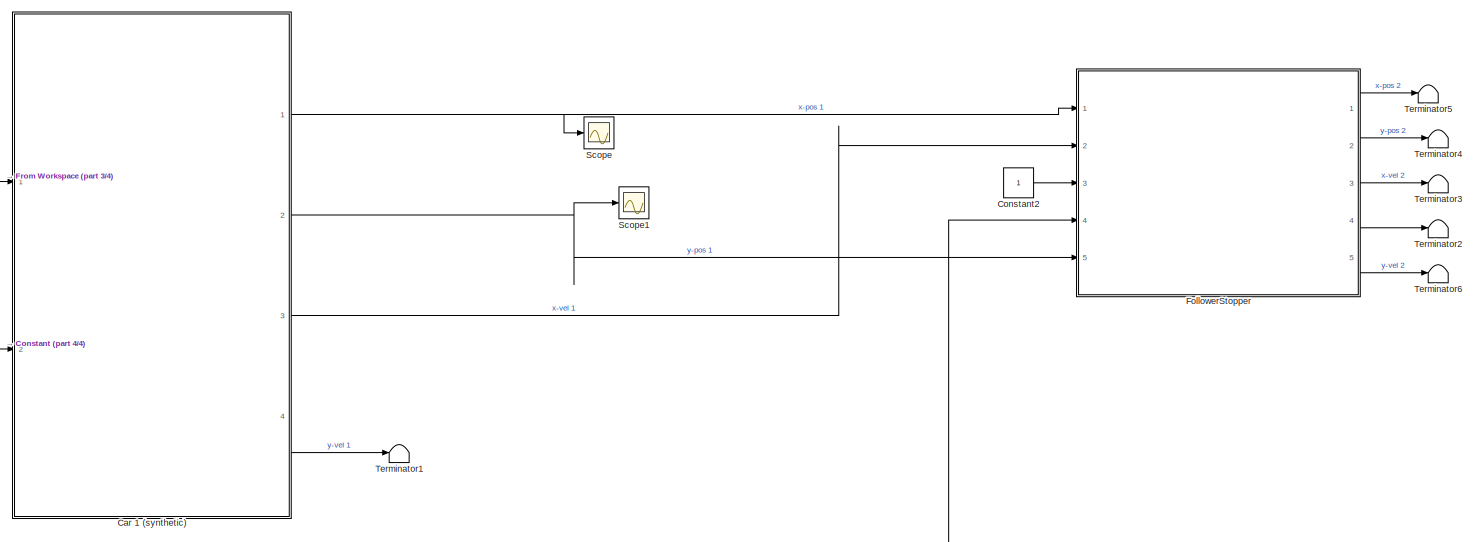
[diagram: root canvas - part 1/4, top center region]
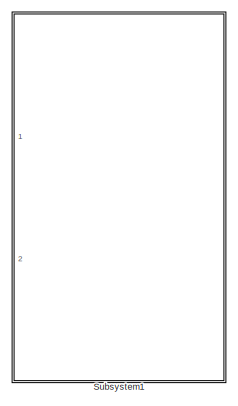
[diagram: root canvas - part 2/4, top right region]
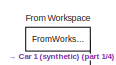
[diagram: root canvas - part 3/4, top left region]
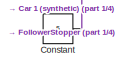
[diagram: root canvas - part 4/4, bottom left region]
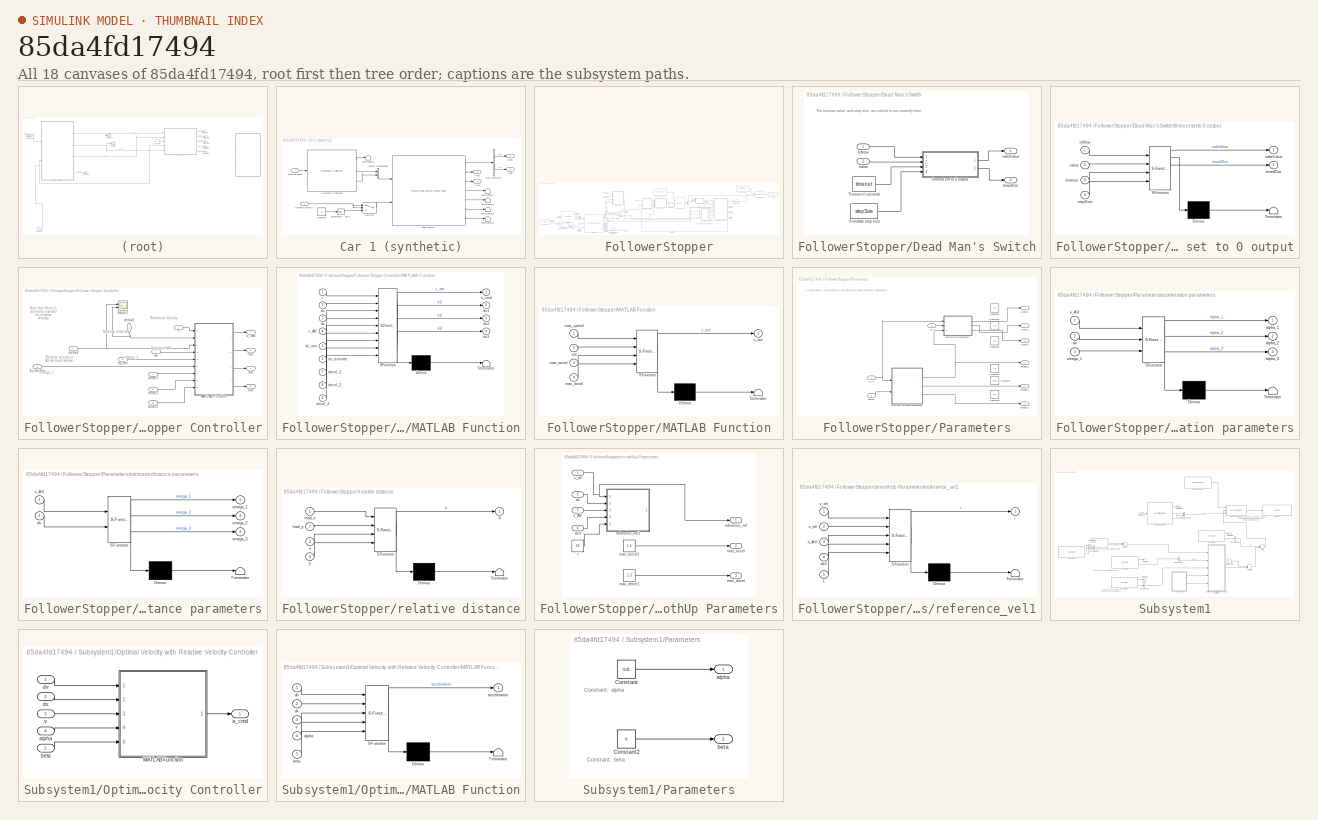
[diagram: thumbnail index - all 18 canvases of the model, root first then tree order]
MODEL slx_85da4fd17494
KIND model
CONFIG AbsTol = auto
CONFIG EnableMultiTasking = off
CONFIG FixedStep = 0.01
CONFIG MaxStep = auto
CONFIG MinStep = auto
CONFIG RelTol = 1e-3
CONFIG SampleTimeConstraint = Unconstrained
CONFIG Solver = FixedStepAuto
CONFIG SolverName = FixedStepAuto
CONFIG StartTime = 0.0
CONFIG StopTime = 90
BLOCK [SubSystem] Car 1 (synthetic)
  Ports = [2, 4]
  RequestExecContextInheritance = off
BLOCK [BusSelector] Car 1 (synthetic)/Bus Selector2
  OutputAsBus = off
  OutputSignals = InertFrm.Geom.Disp.X,InertFrm.Geom.Disp.Y
  Ports = [1, 2]
BLOCK [Constant] Car 1 (synthetic)/Constant2
  Value = 0
BLOCK [Reference] Car 1 (synthetic)/Kinematic Steering  REF=vehdynlibsteering/Kinematic Steering
  Ports = [1, 3]
  SourceBlock = vehdynlibsteering/Kinematic Steering
  SourceProductBaseCode = VE
  SourceProductName = Vehicle Dynamics Blockset
  SourceType = Kinematic Steering
BLOCK [Reference] Car 1 (synthetic)/Lead Vehicle  REF=autolibshared/Vehicle Body 3DOF Single Track
  Ports = [2, 7]
  SourceBlock = autolibshared/Vehicle Body 3DOF Single Track
  SourceProductBaseCode = PW
  SourceProductName = Powertrain Blockset
  SourceType = Vehicle Body 3DOF Lateral
BLOCK [Switch] Car 1 (synthetic)/Switch2
  Criteria = u2 > Threshold
  InputSameDT = off
  SaturateOnIntegerOverflow = off
BLOCK [Terminator] Car 1 (synthetic)/Terminator10
BLOCK [Terminator] Car 1 (synthetic)/Terminator5
BLOCK [Terminator] Car 1 (synthetic)/Terminator7
BLOCK [Terminator] Car 1 (synthetic)/Terminator8
BLOCK [Terminator] Car 1 (synthetic)/Terminator9
BLOCK [Concatenate] Car 1 (synthetic)/Vector Concatenate
  Ports = [2, 1]
BLOCK [Reference] Car 1 (synthetic)/div0protect - poly1  REF=autolibutils/div0protect - poly
  Ports = [1, 1]
  SourceBlock = autolibutils/div0protect - poly
  SourceProductBaseCode = PW
  SourceProductName = Powertrain Blockset
BLOCK [Inport] Car 1 (synthetic)/steering angle
  IconDisplay = Port number
  Port = 2
BLOCK [Inport] Car 1 (synthetic)/synthetic velocity
  IconDisplay = Port number
BLOCK [Outport] Car 1 (synthetic)/x-pos
  IconDisplay = Port number
BLOCK [Outport] Car 1 (synthetic)/x-vel
  IconDisplay = Port number
  Port = 3
BLOCK [Outport] Car 1 (synthetic)/y-pos
  IconDisplay = Port number
  Port = 2
BLOCK [Outport] Car 1 (synthetic)/y-vel
  IconDisplay = Port number
  Port = 4
BLOCK [Constant] Constant
  Value = 5
BLOCK [Constant] Constant2
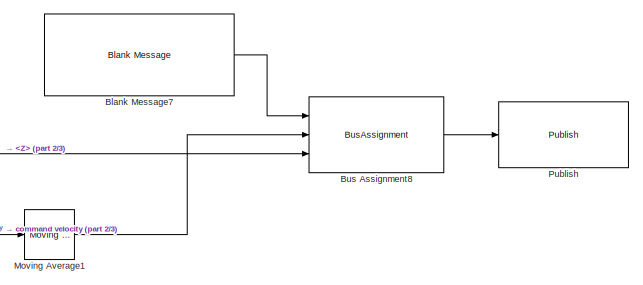
[diagram: FollowerStopper - part 1/3, top right region]
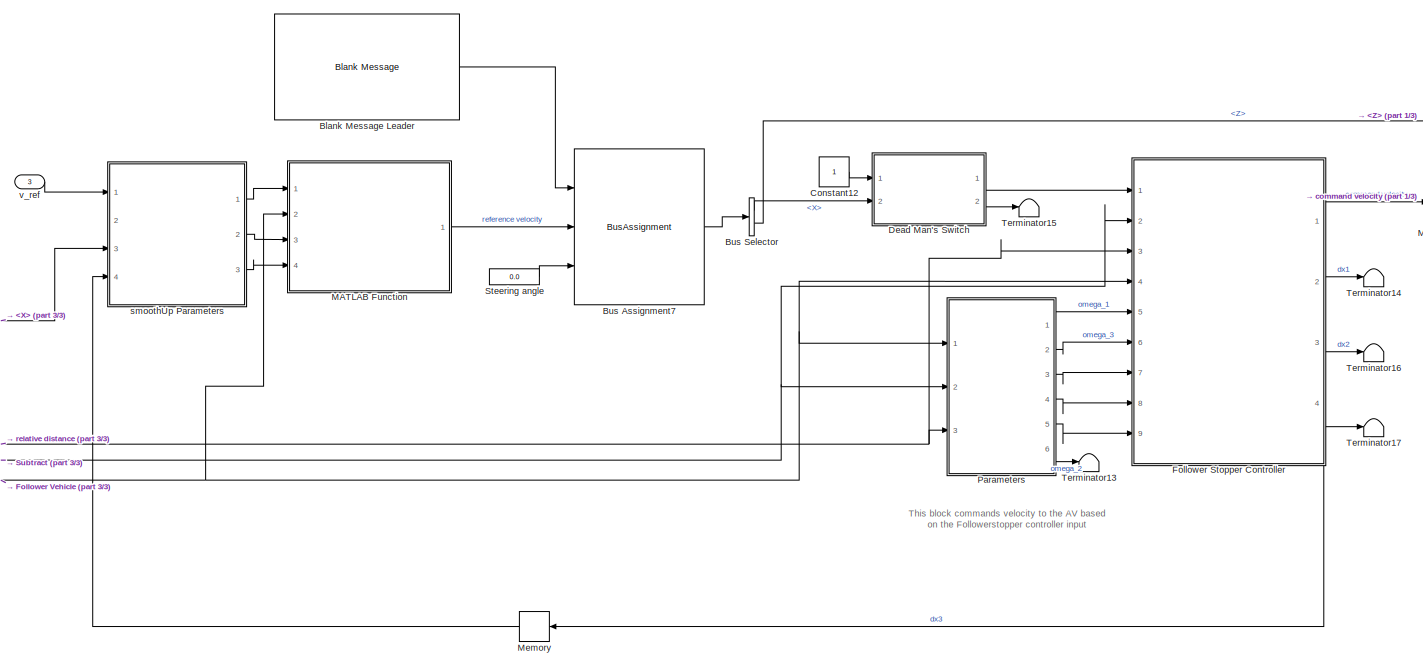
[diagram: FollowerStopper - part 2/3, center side, full height]
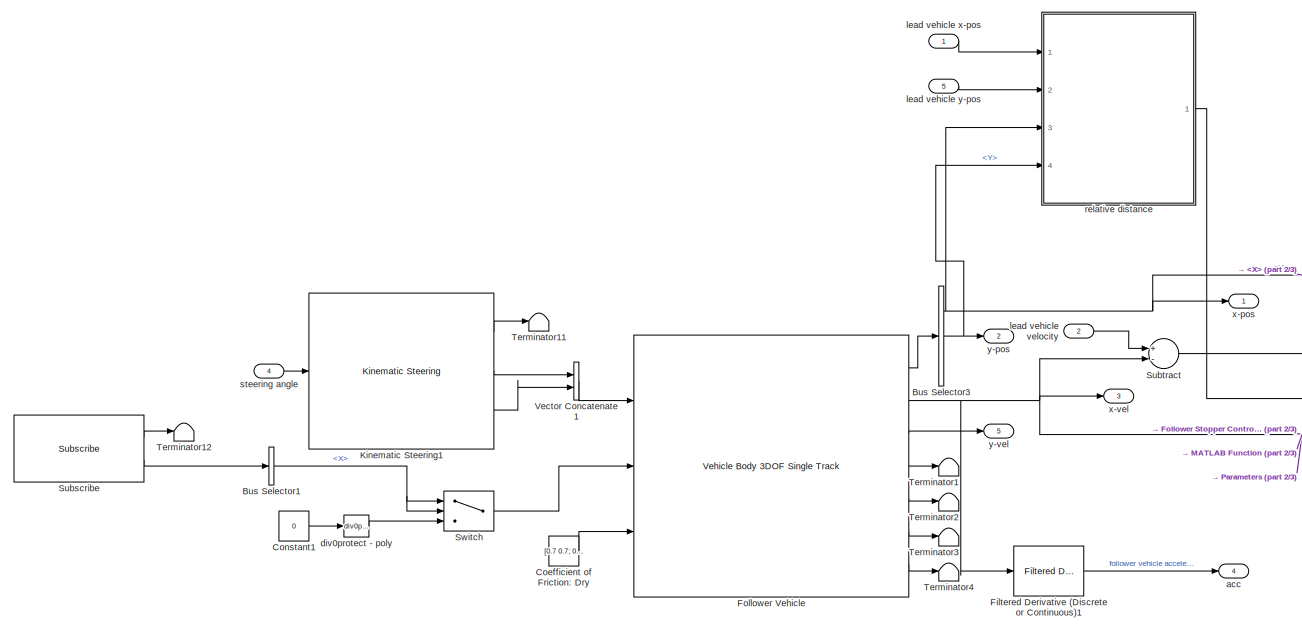
[diagram: FollowerStopper - part 3/3, left side, full height]
BLOCK [SubSystem] FollowerStopper
  Ports = [5, 5]
  RequestExecContextInheritance = off
BLOCK [Reference] FollowerStopper/Blank Message Leader  REF=robotlib/Blank Message
  Ports = [0, 1]
  SourceBlock = robotlib/Blank Message
  SourceProductBaseCode = RO
  SourceProductName = Robotics System Toolbox
  SourceType = ROS Blank Message
BLOCK [Reference] FollowerStopper/Blank Message7  REF=robotlib/Blank Message
  Ports = [0, 1]
  SourceBlock = robotlib/Blank Message
  SourceProductBaseCode = RO
  SourceProductName = Robotics System Toolbox
  SourceType = ROS Blank Message
BLOCK [BusAssignment] FollowerStopper/Bus Assignment7
  AssignedSignals = Linear.X,Angular.Z
  Ports = [3, 1]
BLOCK [BusAssignment] FollowerStopper/Bus Assignment8
  AssignedSignals = Linear.X,Angular.Z
  Ports = [3, 1]
BLOCK [BusSelector] FollowerStopper/Bus Selector
  OutputAsBus = off
  OutputSignals = Linear.X,Angular.Z
  Ports = [1, 2]
BLOCK [BusSelector] FollowerStopper/Bus Selector1
  OutputAsBus = off
  OutputSignals = Linear.X
  Ports = [1, 1]
BLOCK [BusSelector] FollowerStopper/Bus Selector3
  OutputAsBus = off
  OutputSignals = InertFrm.Geom.Disp.X,InertFrm.Geom.Disp.Y,InertFrm.Geom.Disp.Z
  Ports = [1, 3]
BLOCK [Constant] FollowerStopper/Coefficient of Friction: Dry
  Value = [0.7 0.7; 0.7 0.7]
BLOCK [Constant] FollowerStopper/Constant1
  Value = 0
BLOCK [Constant] FollowerStopper/Constant12
BLOCK [SubSystem] FollowerStopper/Dead Man's Switch
  Ports = [2, 2]
  RequestExecContextInheritance = off
  TreatAsAtomicUnit = on
BLOCK [Inport] FollowerStopper/Dead Man's Switch/IsNew
  IconDisplay = Port number
BLOCK [Constant] FollowerStopper/Dead Man's Switch/Simulate step size
  Value = stepSize
BLOCK [Constant] FollowerStopper/Dead Man's Switch/Timeout in seconds
  Value = timeout
BLOCK [Outport] FollowerStopper/Dead Man's Switch/safeValue
  IconDisplay = Port number
  InitialOutput = [0]
BLOCK [Outport] FollowerStopper/Dead Man's Switch/timedOut
  IconDisplay = Port number
  InitialOutput = [0]
  Port = 2
BLOCK [SubSystem] FollowerStopper/Dead Man's Switch/timeout set to 0 output
  ErrorFcn = Stateflow.Translate.translate
  PermitHierarchicalResolution = ExplicitOnly
  Ports = [4, 2]
  RequestExecContextInheritance = off
  SFBlockType = MATLAB Function
  TreatAsAtomicUnit = on
BLOCK [Demux] FollowerStopper/Dead Man's Switch/timeout set to 0 output/ Demux 
  Outputs = 1
  Ports = [1, 1]
BLOCK [S-Function] FollowerStopper/Dead Man's Switch/timeout set to 0 output/ SFunction 
  EnableBusSupport = on
  FunctionName = sf_sfun
  PortCounts = [4 3]
  Ports = [4, 3]
  SFcnIsStateOwnerBlock = off
  SFunctionDeploymentMode = off
  Tag = Stateflow S-Function ringRoad 1
BLOCK [Terminator] FollowerStopper/Dead Man's Switch/timeout set to 0 output/ Terminator 
BLOCK [Inport] FollowerStopper/Dead Man's Switch/timeout set to 0 output/isNew
  IconDisplay = Port number
BLOCK [Outport] FollowerStopper/Dead Man's Switch/timeout set to 0 output/safeValue
  IconDisplay = Port number
BLOCK [Inport] FollowerStopper/Dead Man's Switch/timeout set to 0 output/stepSize
  IconDisplay = Port number
  Port = 4
BLOCK [Outport] FollowerStopper/Dead Man's Switch/timeout set to 0 output/timedOut
  IconDisplay = Port number
  Port = 2
BLOCK [Inport] FollowerStopper/Dead Man's Switch/timeout set to 0 output/timeout
  IconDisplay = Port number
  Port = 3
BLOCK [Inport] FollowerStopper/Dead Man's Switch/timeout set to 0 output/value
  IconDisplay = Port number
  Port = 2
BLOCK [Inport] FollowerStopper/Dead Man's Switch/value
  IconDisplay = Port number
  Port = 2
BLOCK [Reference] FollowerStopper/Filtered Derivative (Discrete or Continuous)1  REF=peGeneralControl/Filtered Derivative
(Discrete or Continuous)
  Ports = [1, 1]
  SourceBlock = peGeneralControl/Filtered Derivative\n(Discrete or Continuous)
  SourceType = Filtered Derivative (Discrete or Continuous)
BLOCK [SubSystem] FollowerStopper/Follower Stopper Controller
  Ports = [9, 4]
  RequestExecContextInheritance = off
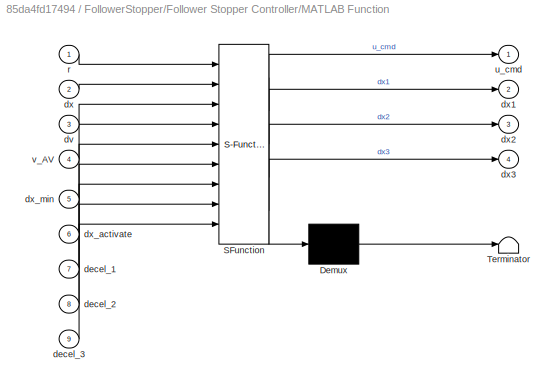
BLOCK [SubSystem] FollowerStopper/Follower Stopper Controller/MATLAB Function
  ErrorFcn = Stateflow.Translate.translate
  PermitHierarchicalResolution = ExplicitOnly
  Ports = [9, 4]
  RequestExecContextInheritance = off
  SFBlockType = MATLAB Function
  TreatAsAtomicUnit = on
BLOCK [Demux] FollowerStopper/Follower Stopper Controller/MATLAB Function/ Demux 
  Outputs = 1
  Ports = [1, 1]
BLOCK [S-Function] FollowerStopper/Follower Stopper Controller/MATLAB Function/ SFunction 
  EnableBusSupport = on
  FunctionName = sf_sfun
  PortCounts = [9 5]
  Ports = [9, 5]
  SFcnIsStateOwnerBlock = off
  SFunctionDeploymentMode = off
  Tag = Stateflow S-Function ringRoad 6
BLOCK [Terminator] FollowerStopper/Follower Stopper Controller/MATLAB Function/ Terminator 
BLOCK [Inport] FollowerStopper/Follower Stopper Controller/MATLAB Function/decel_1
  IconDisplay = Port number
  Port = 7
BLOCK [Inport] FollowerStopper/Follower Stopper Controller/MATLAB Function/decel_2
  IconDisplay = Port number
  Port = 8
BLOCK [Inport] FollowerStopper/Follower Stopper Controller/MATLAB Function/decel_3
  IconDisplay = Port number
  Port = 9
BLOCK [Inport] FollowerStopper/Follower Stopper Controller/MATLAB Function/dv
  IconDisplay = Port number
  Port = 3
BLOCK [Inport] FollowerStopper/Follower Stopper Controller/MATLAB Function/dx
  IconDisplay = Port number
  Port = 2
BLOCK [Outport] FollowerStopper/Follower Stopper Controller/MATLAB Function/dx1
  IconDisplay = Port number
  Port = 2
BLOCK [Outport] FollowerStopper/Follower Stopper Controller/MATLAB Function/dx2
  IconDisplay = Port number
  Port = 3
BLOCK [Outport] FollowerStopper/Follower Stopper Controller/MATLAB Function/dx3
  IconDisplay = Port number
  Port = 4
BLOCK [Inport] FollowerStopper/Follower Stopper Controller/MATLAB Function/dx_activate
  IconDisplay = Port number
  Port = 6
BLOCK [Inport] FollowerStopper/Follower Stopper Controller/MATLAB Function/dx_min
  IconDisplay = Port number
  Port = 5
BLOCK [Inport] FollowerStopper/Follower Stopper Controller/MATLAB Function/r
  IconDisplay = Port number
BLOCK [Outport] FollowerStopper/Follower Stopper Controller/MATLAB Function/u_cmd
  IconDisplay = Port number
BLOCK [Inport] FollowerStopper/Follower Stopper Controller/MATLAB Function/v_AV
  IconDisplay = Port number
  Port = 4
BLOCK [Scope] FollowerStopper/Follower Stopper Controller/Scope1
  Floating = off
  NumInputPorts = 2
  Ports = [2]
  ScopeSpecificationString = Simulink.scopes.TimeScopeBlockCfg('CurrentConfiguration', extmgr.ConfigurationSet(extmgr.Configuration('Core','General UI',true),extmgr.Configuration('Core','Source UI',true),extmgr.Configuration('Sources','WiredSimulink',true,'DataLoggingVariableName','ScopeData1'),extmgr.Configuration('Visuals','Time Domain',true),extmgr.Configuration('Tools','Plot Navigation',true),extmgr.Configuration('Tools',...<+40ch>
BLOCK [Inport] FollowerStopper/Follower Stopper Controller/decel1
  IconDisplay = Port number
  Port = 7
BLOCK [Inport] FollowerStopper/Follower Stopper Controller/decel2
  IconDisplay = Port number
  Port = 8
BLOCK [Inport] FollowerStopper/Follower Stopper Controller/decel3
  IconDisplay = Port number
  Port = 9
BLOCK [Inport] FollowerStopper/Follower Stopper Controller/deltaV
  IconDisplay = Port number
  Port = 2
BLOCK [Inport] FollowerStopper/Follower Stopper Controller/deltaX
  IconDisplay = Port number
  Port = 3
BLOCK [Outport] FollowerStopper/Follower Stopper Controller/dx1
  IconDisplay = Port number
  Port = 2
BLOCK [Outport] FollowerStopper/Follower Stopper Controller/dx2
  IconDisplay = Port number
  Port = 3
BLOCK [Outport] FollowerStopper/Follower Stopper Controller/dx3
  IconDisplay = Port number
  Port = 4
BLOCK [Inport] FollowerStopper/Follower Stopper Controller/dx_activate
  IconDisplay = Port number
  Port = 6
BLOCK [Inport] FollowerStopper/Follower Stopper Controller/dx_min
  IconDisplay = Port number
  Port = 5
BLOCK [Inport] FollowerStopper/Follower Stopper Controller/r
  IconDisplay = Port number
BLOCK [Outport] FollowerStopper/Follower Stopper Controller/u_cmd
  IconDisplay = Port number
BLOCK [Inport] FollowerStopper/Follower Stopper Controller/vel
  IconDisplay = Port number
  Port = 4
BLOCK [Reference] FollowerStopper/Follower Vehicle  REF=autolibshared/Vehicle Body 3DOF Single Track
  Ports = [3, 7]
  SourceBlock = autolibshared/Vehicle Body 3DOF Single Track
  SourceProductBaseCode = PW
  SourceProductName = Powertrain Blockset
  SourceType = Vehicle Body 3DOF Lateral
BLOCK [Reference] FollowerStopper/Kinematic Steering1  REF=vehdynlibsteering/Kinematic Steering
  Ports = [1, 3]
  SourceBlock = vehdynlibsteering/Kinematic Steering
  SourceProductBaseCode = VE
  SourceProductName = Vehicle Dynamics Blockset
  SourceType = Kinematic Steering
BLOCK [SubSystem] FollowerStopper/MATLAB Function
  ErrorFcn = Stateflow.Translate.translate
  PermitHierarchicalResolution = ExplicitOnly
  Ports = [4, 1]
  RequestExecContextInheritance = off
  SFBlockType = MATLAB Function
  TreatAsAtomicUnit = on
BLOCK [Demux] FollowerStopper/MATLAB Function/ Demux 
  Outputs = 1
  Ports = [1, 1]
BLOCK [S-Function] FollowerStopper/MATLAB Function/ SFunction 
  EnableBusSupport = on
  FunctionName = sf_sfun
  PortCounts = [4 2]
  Ports = [4, 2]
  SFcnIsStateOwnerBlock = off
  SFunctionDeploymentMode = off
  Tag = Stateflow S-Function ringRoad 2
BLOCK [Terminator] FollowerStopper/MATLAB Function/ Terminator 
BLOCK [Inport] FollowerStopper/MATLAB Function/max_accel
  IconDisplay = Port number
  Port = 3
BLOCK [Inport] FollowerStopper/MATLAB Function/max_decel
  IconDisplay = Port number
  Port = 4
BLOCK [Inport] FollowerStopper/MATLAB Function/max_speed
  IconDisplay = Port number
BLOCK [Outport] FollowerStopper/MATLAB Function/u_out
  IconDisplay = Port number
BLOCK [Inport] FollowerStopper/MATLAB Function/vel
  IconDisplay = Port number
  Port = 2
BLOCK [Memory] FollowerStopper/Memory
  InheritSampleTime = on
BLOCK [Reference] FollowerStopper/Moving Average1  REF=dspstat3/Moving
Average
  Ports = [1, 1]
  SourceBlock = dspstat3/Moving\nAverage
  SourceProductBaseCode = DS
  SourceProductName = DSP System Toolbox
  SourceType = dsp.simulink.MovingAverage
BLOCK [SubSystem] FollowerStopper/Parameters
  Ports = [3, 6]
  RequestExecContextInheritance = off
BLOCK [Constant] FollowerStopper/Parameters/Constant1
  Commented = on
  Value = 1.5
BLOCK [Constant] FollowerStopper/Parameters/Constant2
  Commented = on
  Value = 1.0
BLOCK [Constant] FollowerStopper/Parameters/Constant3
  Commented = on
  Value = 4.5
BLOCK [Constant] FollowerStopper/Parameters/Constant4
  Commented = on
  Value = 5.25
BLOCK [Constant] FollowerStopper/Parameters/Constant5
  Commented = on
  Value = 6.0
BLOCK [Constant] FollowerStopper/Parameters/Constant6
  Commented = on
  Value = 0.5
BLOCK [SubSystem] FollowerStopper/Parameters/acceleration parameters
  ErrorFcn = Stateflow.Translate.translate
  PermitHierarchicalResolution = ExplicitOnly
  Ports = [3, 3]
  RequestExecContextInheritance = off
  SFBlockType = MATLAB Function
  TreatAsAtomicUnit = on
BLOCK [Demux] FollowerStopper/Parameters/acceleration parameters/ Demux 
  Outputs = 1
  Ports = [1, 1]
BLOCK [S-Function] FollowerStopper/Parameters/acceleration parameters/ SFunction 
  EnableBusSupport = on
  FunctionName = sf_sfun
  PortCounts = [3 4]
  Ports = [3, 4]
  SFcnIsStateOwnerBlock = off
  SFunctionDeploymentMode = off
  Tag = Stateflow S-Function ringRoad 4
BLOCK [Terminator] FollowerStopper/Parameters/acceleration parameters/ Terminator 
BLOCK [Outport] FollowerStopper/Parameters/acceleration parameters/alpha_1
  IconDisplay = Port number
BLOCK [Outport] FollowerStopper/Parameters/acceleration parameters/alpha_2
  IconDisplay = Port number
  Port = 2
BLOCK [Outport] FollowerStopper/Parameters/acceleration parameters/alpha_3
  IconDisplay = Port number
  Port = 3
BLOCK [Inport] FollowerStopper/Parameters/acceleration parameters/dx
  IconDisplay = Port number
  Port = 2
BLOCK [Inport] FollowerStopper/Parameters/acceleration parameters/omega_1
  IconDisplay = Port number
  Port = 3
BLOCK [Inport] FollowerStopper/Parameters/acceleration parameters/v_AV
  IconDisplay = Port number
BLOCK [Outport] FollowerStopper/Parameters/alpha_1
  IconDisplay = Port number
  Port = 3
BLOCK [Outport] FollowerStopper/Parameters/alpha_2
  IconDisplay = Port number
  Port = 4
BLOCK [Outport] FollowerStopper/Parameters/alpha_3
  IconDisplay = Port number
  Port = 5
BLOCK [Inport] FollowerStopper/Parameters/deltaV
  IconDisplay = Port number
  Port = 2
BLOCK [Inport] FollowerStopper/Parameters/dx
  IconDisplay = Port number
  Port = 3
BLOCK [SubSystem] FollowerStopper/Parameters/minimum distance parameters
  ErrorFcn = Stateflow.Translate.translate
  PermitHierarchicalResolution = ExplicitOnly
  Ports = [2, 3]
  RequestExecContextInheritance = off
  SFBlockType = MATLAB Function
  TreatAsAtomicUnit = on
BLOCK [Demux] FollowerStopper/Parameters/minimum distance parameters/ Demux 
  Outputs = 1
  Ports = [1, 1]
BLOCK [S-Function] FollowerStopper/Parameters/minimum distance parameters/ SFunction 
  EnableBusSupport = on
  FunctionName = sf_sfun
  PortCounts = [2 4]
  Ports = [2, 4]
  SFcnIsStateOwnerBlock = off
  SFunctionDeploymentMode = off
  Tag = Stateflow S-Function ringRoad 5
BLOCK [Terminator] FollowerStopper/Parameters/minimum distance parameters/ Terminator 
BLOCK [Inport] FollowerStopper/Parameters/minimum distance parameters/dv
  IconDisplay = Port number
  Port = 2
BLOCK [Outport] FollowerStopper/Parameters/minimum distance parameters/omega_1
  IconDisplay = Port number
BLOCK [Outport] FollowerStopper/Parameters/minimum distance parameters/omega_2
  IconDisplay = Port number
  Port = 2
BLOCK [Outport] FollowerStopper/Parameters/minimum distance parameters/omega_3
  IconDisplay = Port number
  Port = 3
BLOCK [Inport] FollowerStopper/Parameters/minimum distance parameters/v_AV
  IconDisplay = Port number
BLOCK [Outport] FollowerStopper/Parameters/omega_1
  IconDisplay = Port number
BLOCK [Outport] FollowerStopper/Parameters/omega_2
  IconDisplay = Port number
  Port = 6
BLOCK [Outport] FollowerStopper/Parameters/omega_3
  IconDisplay = Port number
  Port = 2
BLOCK [Inport] FollowerStopper/Parameters/v_AV
  IconDisplay = Port number
BLOCK [Reference] FollowerStopper/Publish  REF=robotlib/Publish
  Ports = [1]
  SourceBlock = robotlib/Publish
  SourceProductBaseCode = RO
  SourceProductName = Robotics System Toolbox
  SourceType = ROS Publish
BLOCK [Constant] FollowerStopper/Steering angle
  Value = 0.0
BLOCK [Reference] FollowerStopper/Subscribe  REF=robotlib/Subscribe
  Ports = [0, 2]
  SourceBlock = robotlib/Subscribe
  SourceProductBaseCode = RO
  SourceProductName = Robotics System Toolbox
  SourceType = ROS Subscribe
BLOCK [Sum] FollowerStopper/Subtract
  InputSameDT = off
  Inputs = +-
  OutDataTypeStr = Inherit: Inherit via internal rule
  Ports = [2, 1]
  SaturateOnIntegerOverflow = off
BLOCK [Switch] FollowerStopper/Switch
  Criteria = u2 > Threshold
  InputSameDT = off
  SaturateOnIntegerOverflow = off
BLOCK [Terminator] FollowerStopper/Terminator1
BLOCK [Terminator] FollowerStopper/Terminator11
BLOCK [Terminator] FollowerStopper/Terminator12
BLOCK [Terminator] FollowerStopper/Terminator13
BLOCK [Terminator] FollowerStopper/Terminator14
BLOCK [Terminator] FollowerStopper/Terminator15
BLOCK [Terminator] FollowerStopper/Terminator16
BLOCK [Terminator] FollowerStopper/Terminator17
BLOCK [Terminator] FollowerStopper/Terminator2
BLOCK [Terminator] FollowerStopper/Terminator3
BLOCK [Terminator] FollowerStopper/Terminator4
BLOCK [Concatenate] FollowerStopper/Vector Concatenate1
  Ports = [2, 1]
BLOCK [Outport] FollowerStopper/acc
  IconDisplay = Port number
  Port = 4
BLOCK [Reference] FollowerStopper/div0protect - poly  REF=autolibutils/div0protect - poly
  Ports = [1, 1]
  SourceBlock = autolibutils/div0protect - poly
  SourceProductBaseCode = PW
  SourceProductName = Powertrain Blockset
BLOCK [Inport] FollowerStopper/lead vehicle velocity
  IconDisplay = Port number
  Port = 2
BLOCK [Inport] FollowerStopper/lead vehicle x-pos
  IconDisplay = Port number
BLOCK [Inport] FollowerStopper/lead vehicle y-pos
  IconDisplay = Port number
  Port = 5
BLOCK [SubSystem] FollowerStopper/relative distance
  ErrorFcn = Stateflow.Translate.translate
  PermitHierarchicalResolution = ExplicitOnly
  Ports = [4, 1]
  RequestExecContextInheritance = off
  SFBlockType = MATLAB Function
  TreatAsAtomicUnit = on
BLOCK [Demux] FollowerStopper/relative distance/ Demux 
  Outputs = 1
  Ports = [1, 1]
BLOCK [S-Function] FollowerStopper/relative distance/ SFunction 
  EnableBusSupport = on
  FunctionName = sf_sfun
  PortCounts = [4 2]
  Ports = [4, 2]
  SFcnIsStateOwnerBlock = off
  SFunctionDeploymentMode = off
  Tag = Stateflow S-Function ringRoad 8
BLOCK [Terminator] FollowerStopper/relative distance/ Terminator 
BLOCK [Outport] FollowerStopper/relative distance/d
  IconDisplay = Port number
BLOCK [Inport] FollowerStopper/relative distance/lead_x
  IconDisplay = Port number
BLOCK [Inport] FollowerStopper/relative distance/lead_y
  IconDisplay = Port number
  Port = 2
BLOCK [Inport] FollowerStopper/relative distance/x
  IconDisplay = Port number
  Port = 3
BLOCK [Inport] FollowerStopper/relative distance/y
  IconDisplay = Port number
  Port = 4
BLOCK [SubSystem] FollowerStopper/smoothUp Parameters
  Ports = [4, 3]
  RequestExecContextInheritance = off
BLOCK [Inport] FollowerStopper/smoothUp Parameters/dx
  IconDisplay = Port number
  Port = 2
BLOCK [Inport] FollowerStopper/smoothUp Parameters/dx3
  IconDisplay = Port number
  Port = 4
BLOCK [Outport] FollowerStopper/smoothUp Parameters/max_accel
  IconDisplay = Port number
  Port = 2
BLOCK [Constant] FollowerStopper/smoothUp Parameters/max_accel1
  Value = 1.5
BLOCK [Outport] FollowerStopper/smoothUp Parameters/max_decel
  IconDisplay = Port number
  Port = 3
BLOCK [Constant] FollowerStopper/smoothUp Parameters/max_decel1
  Value = -1.5
BLOCK [Outport] FollowerStopper/smoothUp Parameters/reference_vel
  IconDisplay = Port number
BLOCK [SubSystem] FollowerStopper/smoothUp Parameters/reference_vel1
  Commented = on
  ErrorFcn = Stateflow.Translate.translate
  PermitHierarchicalResolution = ExplicitOnly
  Ports = [5, 1]
  RequestExecContextInheritance = off
  SFBlockType = MATLAB Function
  TreatAsAtomicUnit = on
BLOCK [Demux] FollowerStopper/smoothUp Parameters/reference_vel1/ Demux 
  Outputs = 1
  Ports = [1, 1]
BLOCK [S-Function] FollowerStopper/smoothUp Parameters/reference_vel1/ SFunction 
  EnableBusSupport = on
  FunctionName = sf_sfun
  PortCounts = [5 2]
  Ports = [5, 2]
  SFcnIsStateOwnerBlock = off
  SFunctionDeploymentMode = off
  Tag = Stateflow S-Function ringRoad 7
BLOCK [Terminator] FollowerStopper/smoothUp Parameters/reference_vel1/ Terminator 
BLOCK [Inport] FollowerStopper/smoothUp Parameters/reference_vel1/dx3
  IconDisplay = Port number
  Port = 4
BLOCK [Outport] FollowerStopper/smoothUp Parameters/reference_vel1/r
  IconDisplay = Port number
BLOCK [Inport] FollowerStopper/smoothUp Parameters/reference_vel1/t
  IconDisplay = Port number
  Port = 5
BLOCK [Inport] FollowerStopper/smoothUp Parameters/reference_vel1/v_ref
  IconDisplay = Port number
BLOCK [Inport] FollowerStopper/smoothUp Parameters/reference_vel1/x_AV
  IconDisplay = Port number
  Port = 3
BLOCK [Inport] FollowerStopper/smoothUp Parameters/reference_vel1/x_ref
  IconDisplay = Port number
  Port = 2
BLOCK [Constant] FollowerStopper/smoothUp Parameters/t
  Value = 10
BLOCK [Inport] FollowerStopper/smoothUp Parameters/v_ref
  IconDisplay = Port number
BLOCK [Inport] FollowerStopper/smoothUp Parameters/x_AV
  IconDisplay = Port number
  Port = 3
BLOCK [Inport] FollowerStopper/steering angle
  IconDisplay = Port number
  Port = 4
BLOCK [Inport] FollowerStopper/v_ref
  IconDisplay = Port number
  Port = 3
BLOCK [Outport] FollowerStopper/x-pos
  IconDisplay = Port number
BLOCK [Outport] FollowerStopper/x-vel
  IconDisplay = Port number
  Port = 3
BLOCK [Outport] FollowerStopper/y-pos
  IconDisplay = Port number
  Port = 2
BLOCK [Outport] FollowerStopper/y-vel
  IconDisplay = Port number
  Port = 5
BLOCK [FromWorkspace] From Workspace
  VariableName = vel_car_1
  ZeroCross = on
BLOCK [Scope] Scope
  Floating = off
  NumInputPorts = 1
  Ports = [1]
  ScopeSpecificationString = Simulink.scopes.TimeScopeBlockCfg('CurrentConfiguration', extmgr.ConfigurationSet(extmgr.Configuration('Core','General UI',true),extmgr.Configuration('Core','Source UI',true),extmgr.Configuration('Sources','WiredSimulink',true,'DataLoggingVariableName','xpos','DataLogging',true),extmgr.Configuration('Visuals','Time Domain',true,'SerializedDisplays',{struct('MinYLimReal','-33.20912','MaxYLimReal','...<+1414ch>
BLOCK [Scope] Scope1
  Floating = off
  NumInputPorts = 1
  Ports = [1]
  ScopeSpecificationString = Simulink.scopes.TimeScopeBlockCfg('CurrentConfiguration', extmgr.ConfigurationSet(extmgr.Configuration('Core','General UI',true),extmgr.Configuration('Core','Source UI',true),extmgr.Configuration('Sources','WiredSimulink',true,'DataLoggingVariableName','ypos','DataLogging',true),extmgr.Configuration('Visuals','Time Domain',true,'SerializedDisplays',{struct('MinYLimReal','-18.7865','MaxYLimReal','1...<+1416ch>
BLOCK [SubSystem] Subsystem1
  Commented = on
  Ports = [2]
  RequestExecContextInheritance = off
BLOCK [Sum] Subsystem1/Add
  InputSameDT = off
  OutDataTypeStr = Inherit: Inherit via internal rule
  Ports = [2, 1]
  SaturateOnIntegerOverflow = off
BLOCK [Reference] Subsystem1/Blank Message  REF=robotlib/Blank Message
  Ports = [0, 1]
  SourceBlock = robotlib/Blank Message
  SourceProductBaseCode = RO
  SourceProductName = Robotics System Toolbox
  SourceType = ROS Blank Message
BLOCK [BusAssignment] Subsystem1/Bus Assignment
  AssignedSignals = Linear.X,Angular.Z
  Ports = [3, 1]
BLOCK [BusSelector] Subsystem1/Bus Selector1
  OutputAsBus = off
  OutputSignals = Data
  Ports = [1, 1]
BLOCK [BusSelector] Subsystem1/Bus Selector2
  OutputAsBus = off
  OutputSignals = Linear.X
  Ports = [1, 1]
BLOCK [BusSelector] Subsystem1/Bus Selector3
  OutputAsBus = off
  OutputSignals = Linear.X
  Ports = [1, 1]
BLOCK [BusSelector] Subsystem1/Bus Selector5
  OutputAsBus = off
  OutputSignals = Linear.X
  Ports = [1, 1]
BLOCK [Reference] Subsystem1/Kinematic Steering1  REF=vehdynlibsteering/Kinematic Steering
  Ports = [1, 3]
  SourceBlock = vehdynlibsteering/Kinematic Steering
  SourceProductBaseCode = VE
  SourceProductName = Vehicle Dynamics Blockset
  SourceType = Kinematic Steering
BLOCK [Product] Subsystem1/Multiply
  InputSameDT = off
  OutDataTypeStr = Inherit: Inherit via internal rule
  Ports = [2, 1]
  RndMeth = Floor
  SaturateOnIntegerOverflow = off
BLOCK [SubSystem] Subsystem1/Optimal Velocity with Relative Velocity Controller
  Ports = [5, 1]
  RequestExecContextInheritance = off
BLOCK [SubSystem] Subsystem1/Optimal Velocity with Relative Velocity Controller/MATLAB Function
  ErrorFcn = Stateflow.Translate.translate
  PermitHierarchicalResolution = ExplicitOnly
  Ports = [5, 1]
  RequestExecContextInheritance = off
  SFBlockType = MATLAB Function
  TreatAsAtomicUnit = on
BLOCK [Demux] Subsystem1/Optimal Velocity with Relative Velocity Controller/MATLAB Function/ Demux 
  Outputs = 1
  Ports = [1, 1]
BLOCK [S-Function] Subsystem1/Optimal Velocity with Relative Velocity Controller/MATLAB Function/ SFunction 
  EnableBusSupport = on
  FunctionName = sf_sfun
  PortCounts = [5 2]
  Ports = [5, 2]
  SFcnIsStateOwnerBlock = off
  SFunctionDeploymentMode = off
  Tag = Stateflow S-Function ringRoad 3
BLOCK [Terminator] Subsystem1/Optimal Velocity with Relative Velocity Controller/MATLAB Function/ Terminator 
BLOCK [Outport] Subsystem1/Optimal Velocity with Relative Velocity Controller/MATLAB Function/acceleration
  IconDisplay = Port number
BLOCK [Inport] Subsystem1/Optimal Velocity with Relative Velocity Controller/MATLAB Function/alpha
  IconDisplay = Port number
  Port = 4
BLOCK [Inport] Subsystem1/Optimal Velocity with Relative Velocity Controller/MATLAB Function/beta
  IconDisplay = Port number
  Port = 5
BLOCK [Inport] Subsystem1/Optimal Velocity with Relative Velocity Controller/MATLAB Function/dv
  IconDisplay = Port number
BLOCK [Inport] Subsystem1/Optimal Velocity with Relative Velocity Controller/MATLAB Function/dx
  IconDisplay = Port number
  Port = 2
BLOCK [Inport] Subsystem1/Optimal Velocity with Relative Velocity Controller/MATLAB Function/v
  IconDisplay = Port number
  Port = 3
BLOCK [Outport] Subsystem1/Optimal Velocity with Relative Velocity Controller/a_cmd
  IconDisplay = Port number
BLOCK [Inport] Subsystem1/Optimal Velocity with Relative Velocity Controller/alpha
  IconDisplay = Port number
  Port = 4
BLOCK [Inport] Subsystem1/Optimal Velocity with Relative Velocity Controller/beta
  IconDisplay = Port number
  Port = 5
BLOCK [Inport] Subsystem1/Optimal Velocity with Relative Velocity Controller/dv
  IconDisplay = Port number
BLOCK [Inport] Subsystem1/Optimal Velocity with Relative Velocity Controller/dx
  IconDisplay = Port number
  Port = 2
BLOCK [Inport] Subsystem1/Optimal Velocity with Relative Velocity Controller/v
  IconDisplay = Port number
  Port = 3
BLOCK [SubSystem] Subsystem1/Parameters
  Ports = [0, 2]
  RequestExecContextInheritance = off
BLOCK [Constant] Subsystem1/Parameters/Constant
  Value = 0.41
BLOCK [Constant] Subsystem1/Parameters/Constant2
  Value = 0
BLOCK [Outport] Subsystem1/Parameters/alpha
  IconDisplay = Port number
BLOCK [Outport] Subsystem1/Parameters/beta
  IconDisplay = Port number
  Port = 2
BLOCK [Reference] Subsystem1/Publish  REF=robotlib/Publish
  Ports = [1]
  SourceBlock = robotlib/Publish
  SourceProductBaseCode = RO
  SourceProductName = Robotics System Toolbox
  SourceType = ROS Publish
BLOCK [Constant] Subsystem1/Sampling Time
  Value = 0.2
BLOCK [Reference] Subsystem1/Subscribe  REF=robotlib/Subscribe
  Ports = [0, 2]
  SourceBlock = robotlib/Subscribe
  SourceProductBaseCode = RO
  SourceProductName = Robotics System Toolbox
  SourceType = ROS Subscribe
BLOCK [Reference] Subsystem1/Subscribe3  REF=robotlib/Subscribe
  Ports = [0, 2]
  SourceBlock = robotlib/Subscribe
  SourceProductBaseCode = RO
  SourceProductName = Robotics System Toolbox
  SourceType = ROS Subscribe
BLOCK [Reference] Subsystem1/Subscribe4  REF=robotlib/Subscribe
  Ports = [0, 2]
  SourceBlock = robotlib/Subscribe
  SourceProductBaseCode = RO
  SourceProductName = Robotics System Toolbox
  SourceType = ROS Subscribe
BLOCK [Reference] Subsystem1/Subscribe6  REF=robotlib/Subscribe
  Ports = [0, 2]
  SourceBlock = robotlib/Subscribe
  SourceProductBaseCode = RO
  SourceProductName = Robotics System Toolbox
  SourceType = ROS Subscribe
BLOCK [Sum] Subsystem1/Subtract
  InputSameDT = off
  Inputs = +-
  OutDataTypeStr = Inherit: Inherit via internal rule
  Ports = [2, 1]
  SaturateOnIntegerOverflow = off
BLOCK [Terminator] Subsystem1/Terminator
BLOCK [Terminator] Subsystem1/Terminator1
BLOCK [Terminator] Subsystem1/Terminator11
BLOCK [Terminator] Subsystem1/Terminator4
BLOCK [Terminator] Subsystem1/Terminator5
BLOCK [Concatenate] Subsystem1/Vector Concatenate1
  Ports = [2, 1]
BLOCK [Inport] Subsystem1/lead vehicle velocity
  IconDisplay = Port number
BLOCK [Inport] Subsystem1/steering ang
  IconDisplay = Port number
  Port = 2
BLOCK [Terminator] Terminator1
BLOCK [Terminator] Terminator2
BLOCK [Terminator] Terminator3
BLOCK [Terminator] Terminator4
BLOCK [Terminator] Terminator5
BLOCK [Terminator] Terminator6
ANNOTATION FollowerStopper: This block commands velocity to the AV based on the Followerstopper controller input
ANNOTATION FollowerStopper/Dead Man's Switch: The timeout value, and step size, are critical to set correctly here.
ANNOTATION FollowerStopper/Follower Stopper Controller: Reference Velocity
ANNOTATION FollowerStopper/Follower Stopper Controller: Relative distance
ANNOTATION FollowerStopper/Follower Stopper Controller: Relative velocity of AV wrt lead vehicle
ANNOTATION FollowerStopper/Follower Stopper Controller: Velocity of AV
ANNOTATION FollowerStopper/Follower Stopper Controller: \omega_1
ANNOTATION FollowerStopper/Follower Stopper Controller: \omega_3
ANNOTATION FollowerStopper/Follower Stopper Controller: Note that Benni's controller uses dU for relative velocity
ANNOTATION FollowerStopper/Parameters: Always check if the constants or the function are used inside both "parameters" blocks
ANNOTATION Subsystem1: This block commands velocity to the AV based on the Optimal Velocity with Relative Velocity human car-following model
ANNOTATION Subsystem1: This block subscribes to relative distance
ANNOTATION Subsystem1: This block subscribes to relative velocity
ANNOTATION Subsystem1: This block subscribes to instantaneous velocity of the AV
ANNOTATION Subsystem1/Parameters: Constant: alpha
ANNOTATION Subsystem1/Parameters: Constant: beta
LINE Car 1 (synthetic)/Bus Selector2:1 -> Car 1 (synthetic)/x-pos:1
LINE Car 1 (synthetic)/Bus Selector2:2 -> Car 1 (synthetic)/y-pos:1
LINE Car 1 (synthetic)/Constant2:1 -> Car 1 (synthetic)/div0protect - poly1:1
LINE Car 1 (synthetic)/Kinematic Steering:1 -> Car 1 (synthetic)/Terminator5:1
LINE Car 1 (synthetic)/Kinematic Steering:2 -> Car 1 (synthetic)/Vector Concatenate:1
LINE Car 1 (synthetic)/Kinematic Steering:3 -> Car 1 (synthetic)/Vector Concatenate:2
LINE Car 1 (synthetic)/Lead Vehicle:1 -> Car 1 (synthetic)/Bus Selector2:1
LINE Car 1 (synthetic)/Lead Vehicle:2 -> Car 1 (synthetic)/x-vel:1
LINE Car 1 (synthetic)/Lead Vehicle:3 -> Car 1 (synthetic)/y-vel:1
LINE Car 1 (synthetic)/Lead Vehicle:4 -> Car 1 (synthetic)/Terminator7:1
LINE Car 1 (synthetic)/Lead Vehicle:5 -> Car 1 (synthetic)/Terminator8:1
LINE Car 1 (synthetic)/Lead Vehicle:6 -> Car 1 (synthetic)/Terminator9:1
LINE Car 1 (synthetic)/Lead Vehicle:7 -> Car 1 (synthetic)/Terminator10:1
LINE Car 1 (synthetic)/Switch2:1 -> Car 1 (synthetic)/Lead Vehicle:2
LINE Car 1 (synthetic)/Vector Concatenate:1 -> Car 1 (synthetic)/Lead Vehicle:1
LINE Car 1 (synthetic)/div0protect - poly1:1 -> Car 1 (synthetic)/Switch2:3
LINE Car 1 (synthetic)/steering angle:1 -> Car 1 (synthetic)/Kinematic Steering:1
NET Car 1 (synthetic)/synthetic velocity:1 -> Car 1 (synthetic)/Switch2:1, Car 1 (synthetic)/Switch2:2
NET Car 1 (synthetic):1 -> FollowerStopper:1, Scope:1
NET Car 1 (synthetic):2 -> FollowerStopper:5, Scope1:1
LINE Car 1 (synthetic):3 -> FollowerStopper:2
LINE Car 1 (synthetic):4 -> Terminator1:1
LINE Constant2:1 -> FollowerStopper:3
NET Constant:1 -> Car 1 (synthetic):2, FollowerStopper:4
LINE FollowerStopper/Blank Message Leader:1 -> FollowerStopper/Bus Assignment7:1
LINE FollowerStopper/Blank Message7:1 -> FollowerStopper/Bus Assignment8:1
LINE FollowerStopper/Bus Assignment7:1 -> FollowerStopper/Bus Selector:1
LINE FollowerStopper/Bus Assignment8:1 -> FollowerStopper/Publish:1
NET FollowerStopper/Bus Selector1:1 -> FollowerStopper/Switch:1, FollowerStopper/Switch:2
NET FollowerStopper/Bus Selector3:1 -> FollowerStopper/relative distance:3, FollowerStopper/smoothUp Parameters:3, FollowerStopper/x-pos:1
NET FollowerStopper/Bus Selector3:2 -> FollowerStopper/relative distance:4, FollowerStopper/y-pos:1
LINE FollowerStopper/Bus Selector:1 -> FollowerStopper/Dead Man's Switch:2
LINE FollowerStopper/Bus Selector:2 -> FollowerStopper/Bus Assignment8:3
LINE FollowerStopper/Coefficient of Friction: Dry:1 -> FollowerStopper/Follower Vehicle:3
LINE FollowerStopper/Constant12:1 -> FollowerStopper/Dead Man's Switch:1
LINE FollowerStopper/Constant1:1 -> FollowerStopper/div0protect - poly:1
LINE FollowerStopper/Dead Man's Switch/IsNew:1 -> FollowerStopper/Dead Man's Switch/timeout set to 0 output:1
LINE FollowerStopper/Dead Man's Switch/Simulate step size:1 -> FollowerStopper/Dead Man's Switch/timeout set to 0 output:4
LINE FollowerStopper/Dead Man's Switch/Timeout in seconds:1 -> FollowerStopper/Dead Man's Switch/timeout set to 0 output:3
LINE FollowerStopper/Dead Man's Switch/timeout set to 0 output:1 -> FollowerStopper/Dead Man's Switch/safeValue:1
LINE FollowerStopper/Dead Man's Switch/timeout set to 0 output:2 -> FollowerStopper/Dead Man's Switch/timedOut:1
LINE FollowerStopper/Dead Man's Switch/value:1 -> FollowerStopper/Dead Man's Switch/timeout set to 0 output:2
LINE FollowerStopper/Dead Man's Switch:1 -> FollowerStopper/Follower Stopper Controller:1
LINE FollowerStopper/Dead Man's Switch:2 -> FollowerStopper/Terminator15:1
LINE FollowerStopper/Filtered Derivative (Discrete or Continuous)1:1 -> FollowerStopper/acc:1
LINE FollowerStopper/Follower Stopper Controller/MATLAB Function:1 -> FollowerStopper/Follower Stopper Controller/u_cmd:1
LINE FollowerStopper/Follower Stopper Controller/MATLAB Function:2 -> FollowerStopper/Follower Stopper Controller/dx1:1
LINE FollowerStopper/Follower Stopper Controller/MATLAB Function:3 -> FollowerStopper/Follower Stopper Controller/dx2:1
LINE FollowerStopper/Follower Stopper Controller/MATLAB Function:4 -> FollowerStopper/Follower Stopper Controller/dx3:1
LINE FollowerStopper/Follower Stopper Controller/decel1:1 -> FollowerStopper/Follower Stopper Controller/MATLAB Function:7
LINE FollowerStopper/Follower Stopper Controller/decel2:1 -> FollowerStopper/Follower Stopper Controller/MATLAB Function:8
LINE FollowerStopper/Follower Stopper Controller/decel3:1 -> FollowerStopper/Follower Stopper Controller/MATLAB Function:9
NET FollowerStopper/Follower Stopper Controller/deltaV:1 -> FollowerStopper/Follower Stopper Controller/MATLAB Function:3, FollowerStopper/Follower Stopper Controller/Scope1:1
NET FollowerStopper/Follower Stopper Controller/deltaX:1 -> FollowerStopper/Follower Stopper Controller/MATLAB Function:2, FollowerStopper/Follower Stopper Controller/Scope1:2
LINE FollowerStopper/Follower Stopper Controller/dx_activate:1 -> FollowerStopper/Follower Stopper Controller/MATLAB Function:6
LINE FollowerStopper/Follower Stopper Controller/dx_min:1 -> FollowerStopper/Follower Stopper Controller/MATLAB Function:5
LINE FollowerStopper/Follower Stopper Controller/r:1 -> FollowerStopper/Follower Stopper Controller/MATLAB Function:1
LINE FollowerStopper/Follower Stopper Controller/vel:1 -> FollowerStopper/Follower Stopper Controller/MATLAB Function:4
LINE FollowerStopper/Follower Stopper Controller:1 -> FollowerStopper/Moving Average1:1
LINE FollowerStopper/Follower Stopper Controller:2 -> FollowerStopper/Terminator14:1
LINE FollowerStopper/Follower Stopper Controller:3 -> FollowerStopper/Terminator16:1
NET FollowerStopper/Follower Stopper Controller:4 -> FollowerStopper/Memory:1, FollowerStopper/Terminator17:1
LINE FollowerStopper/Follower Vehicle:1 -> FollowerStopper/Bus Selector3:1
NET FollowerStopper/Follower Vehicle:2 -> FollowerStopper/Filtered Derivative (Discrete or Continuous)1:1, FollowerStopper/Follower Stopper Controller:4, FollowerStopper/MATLAB Function:2, FollowerStopper/Parameters:1, FollowerStopper/Subtract:2, FollowerStopper/x-vel:1
LINE FollowerStopper/Follower Vehicle:3 -> FollowerStopper/y-vel:1
LINE FollowerStopper/Follower Vehicle:4 -> FollowerStopper/Terminator1:1
LINE FollowerStopper/Follower Vehicle:5 -> FollowerStopper/Terminator2:1
LINE FollowerStopper/Follower Vehicle:6 -> FollowerStopper/Terminator3:1
LINE FollowerStopper/Follower Vehicle:7 -> FollowerStopper/Terminator4:1
LINE FollowerStopper/Kinematic Steering1:1 -> FollowerStopper/Terminator11:1
LINE FollowerStopper/Kinematic Steering1:2 -> FollowerStopper/Vector Concatenate1:1
LINE FollowerStopper/Kinematic Steering1:3 -> FollowerStopper/Vector Concatenate1:2
LINE FollowerStopper/MATLAB Function:1 -> FollowerStopper/Bus Assignment7:2
LINE FollowerStopper/Memory:1 -> FollowerStopper/smoothUp Parameters:4
LINE FollowerStopper/Moving Average1:1 -> FollowerStopper/Bus Assignment8:2
LINE FollowerStopper/Parameters/acceleration parameters:1 -> FollowerStopper/Parameters/alpha_1:1
LINE FollowerStopper/Parameters/acceleration parameters:2 -> FollowerStopper/Parameters/alpha_2:1
LINE FollowerStopper/Parameters/acceleration parameters:3 -> FollowerStopper/Parameters/alpha_3:1
LINE FollowerStopper/Parameters/deltaV:1 -> FollowerStopper/Parameters/minimum distance parameters:2
LINE FollowerStopper/Parameters/dx:1 -> FollowerStopper/Parameters/acceleration parameters:2
NET FollowerStopper/Parameters/minimum distance parameters:1 -> FollowerStopper/Parameters/acceleration parameters:3, FollowerStopper/Parameters/omega_1:1
LINE FollowerStopper/Parameters/minimum distance parameters:2 -> FollowerStopper/Parameters/omega_2:1
LINE FollowerStopper/Parameters/minimum distance parameters:3 -> FollowerStopper/Parameters/omega_3:1
NET FollowerStopper/Parameters/v_AV:1 -> FollowerStopper/Parameters/acceleration parameters:1, FollowerStopper/Parameters/minimum distance parameters:1
LINE FollowerStopper/Parameters:1 -> FollowerStopper/Follower Stopper Controller:5
LINE FollowerStopper/Parameters:2 -> FollowerStopper/Follower Stopper Controller:6
LINE FollowerStopper/Parameters:3 -> FollowerStopper/Follower Stopper Controller:7
LINE FollowerStopper/Parameters:4 -> FollowerStopper/Follower Stopper Controller:8
LINE FollowerStopper/Parameters:5 -> FollowerStopper/Follower Stopper Controller:9
LINE FollowerStopper/Parameters:6 -> FollowerStopper/Terminator13:1
LINE FollowerStopper/Steering angle:1 -> FollowerStopper/Bus Assignment7:3
LINE FollowerStopper/Subscribe:1 -> FollowerStopper/Terminator12:1
LINE FollowerStopper/Subscribe:2 -> FollowerStopper/Bus Selector1:1
NET FollowerStopper/Subtract:1 -> FollowerStopper/Follower Stopper Controller:2, FollowerStopper/Parameters:2
LINE FollowerStopper/Switch:1 -> FollowerStopper/Follower Vehicle:2
LINE FollowerStopper/Vector Concatenate1:1 -> FollowerStopper/Follower Vehicle:1
LINE FollowerStopper/div0protect - poly:1 -> FollowerStopper/Switch:3
LINE FollowerStopper/lead vehicle velocity:1 -> FollowerStopper/Subtract:1
LINE FollowerStopper/lead vehicle x-pos:1 -> FollowerStopper/relative distance:1
LINE FollowerStopper/lead vehicle y-pos:1 -> FollowerStopper/relative distance:2
NET FollowerStopper/relative distance:1 -> FollowerStopper/Follower Stopper Controller:3, FollowerStopper/Parameters:3
LINE FollowerStopper/smoothUp Parameters/dx3:1 -> FollowerStopper/smoothUp Parameters/reference_vel1:4
LINE FollowerStopper/smoothUp Parameters/dx:1 -> FollowerStopper/smoothUp Parameters/reference_vel1:2
LINE FollowerStopper/smoothUp Parameters/max_accel1:1 -> FollowerStopper/smoothUp Parameters/max_accel:1
LINE FollowerStopper/smoothUp Parameters/max_decel1:1 -> FollowerStopper/smoothUp Parameters/max_decel:1
LINE FollowerStopper/smoothUp Parameters/t:1 -> FollowerStopper/smoothUp Parameters/reference_vel1:5
NET FollowerStopper/smoothUp Parameters/v_ref:1 -> FollowerStopper/smoothUp Parameters/reference_vel1:1, FollowerStopper/smoothUp Parameters/reference_vel:1
LINE FollowerStopper/smoothUp Parameters/x_AV:1 -> FollowerStopper/smoothUp Parameters/reference_vel1:3
LINE FollowerStopper/smoothUp Parameters:1 -> FollowerStopper/MATLAB Function:1
LINE FollowerStopper/smoothUp Parameters:2 -> FollowerStopper/MATLAB Function:3
LINE FollowerStopper/smoothUp Parameters:3 -> FollowerStopper/MATLAB Function:4
LINE FollowerStopper/steering angle:1 -> FollowerStopper/Kinematic Steering1:1
LINE FollowerStopper/v_ref:1 -> FollowerStopper/smoothUp Parameters:1
LINE FollowerStopper:1 -> Terminator5:1
LINE FollowerStopper:2 -> Terminator4:1
LINE FollowerStopper:3 -> Terminator3:1
LINE FollowerStopper:4 -> Terminator2:1
LINE FollowerStopper:5 -> Terminator6:1
LINE From Workspace:1 -> Car 1 (synthetic):1
LINE Subsystem1/Add:1 -> Subsystem1/Bus Assignment:2
LINE Subsystem1/Blank Message:1 -> Subsystem1/Bus Assignment:1
LINE Subsystem1/Bus Assignment:1 -> Subsystem1/Publish:1
LINE Subsystem1/Bus Selector1:1 -> Subsystem1/Optimal Velocity with Relative Velocity Controller:2
LINE Subsystem1/Bus Selector2:1 -> Subsystem1/Add:1
LINE Subsystem1/Bus Selector3:1 -> Subsystem1/Optimal Velocity with Relative Velocity Controller:3
LINE Subsystem1/Bus Selector5:1 -> Subsystem1/Subtract:2
LINE Subsystem1/Kinematic Steering1:1 -> Subsystem1/Terminator11:1
LINE Subsystem1/Kinematic Steering1:2 -> Subsystem1/Vector Concatenate1:1
LINE Subsystem1/Kinematic Steering1:3 -> Subsystem1/Vector Concatenate1:2
LINE Subsystem1/Multiply:1 -> Subsystem1/Add:2
LINE Subsystem1/Optimal Velocity with Relative Velocity Controller/MATLAB Function:1 -> Subsystem1/Optimal Velocity with Relative Velocity Controller/a_cmd:1
LINE Subsystem1/Optimal Velocity with Relative Velocity Controller/alpha:1 -> Subsystem1/Optimal Velocity with Relative Velocity Controller/MATLAB Function:4
LINE Subsystem1/Optimal Velocity with Relative Velocity Controller/beta:1 -> Subsystem1/Optimal Velocity with Relative Velocity Controller/MATLAB Function:5
LINE Subsystem1/Optimal Velocity with Relative Velocity Controller/dv:1 -> Subsystem1/Optimal Velocity with Relative Velocity Controller/MATLAB Function:1
LINE Subsystem1/Optimal Velocity with Relative Velocity Controller/dx:1 -> Subsystem1/Optimal Velocity with Relative Velocity Controller/MATLAB Function:2
LINE Subsystem1/Optimal Velocity with Relative Velocity Controller/v:1 -> Subsystem1/Optimal Velocity with Relative Velocity Controller/MATLAB Function:3
LINE Subsystem1/Optimal Velocity with Relative Velocity Controller:1 -> Subsystem1/Multiply:2
LINE Subsystem1/Parameters/Constant2:1 -> Subsystem1/Parameters/beta:1
LINE Subsystem1/Parameters/Constant:1 -> Subsystem1/Parameters/alpha:1
LINE Subsystem1/Parameters:1 -> Subsystem1/Optimal Velocity with Relative Velocity Controller:4
LINE Subsystem1/Parameters:2 -> Subsystem1/Optimal Velocity with Relative Velocity Controller:5
LINE Subsystem1/Sampling Time:1 -> Subsystem1/Multiply:1
LINE Subsystem1/Subscribe3:1 -> Subsystem1/Terminator4:1
LINE Subsystem1/Subscribe3:2 -> Subsystem1/Bus Selector3:1
LINE Subsystem1/Subscribe4:1 -> Subsystem1/Terminator:1
LINE Subsystem1/Subscribe4:2 -> Subsystem1/Bus Selector5:1
LINE Subsystem1/Subscribe6:1 -> Subsystem1/Terminator5:1
LINE Subsystem1/Subscribe6:2 -> Subsystem1/Bus Selector2:1
LINE Subsystem1/Subscribe:1 -> Subsystem1/Terminator1:1
LINE Subsystem1/Subscribe:2 -> Subsystem1/Bus Selector1:1
LINE Subsystem1/Subtract:1 -> Subsystem1/Optimal Velocity with Relative Velocity Controller:1
LINE Subsystem1/Vector Concatenate1:1 -> Subsystem1/Bus Assignment:3
LINE Subsystem1/lead vehicle velocity:1 -> Subsystem1/Subtract:1
LINE Subsystem1/steering ang:1 -> Subsystem1/Kinematic Steering1:1
note: NET lines group one-source signal fan-out (src -> all destinations, sorted); 1:1 wires keep LINE
CHART FollowerStopper/Dead Man's Switch/timeout set to 0 output states=1 transitions=1
  STATE_LABEL 'eML_blk_kernel()'
  STATE_LABEL 'SCRIPT:\nfunction [safeValue,timedOut] = fcn(isNew,value,timeout,stepSize)\n%#codegen\npersistent sinceLastMsg\ntimedOut=true;\nif isempty(sinceLastMsg)\n    sinceLastMsg=(timeout/stepSize)+1;\nend\n\nsafeValue=0;\n% if no new message\n% after timeout, we output 0\nif( isNew == true )\n    sinceLastMsg = 0;\nelse\n    sinceLastMsg = sinceLastMsg+1;\nend\n\n% Note: we require step size as an input here, and depend o...<+195ch>'
CHART FollowerStopper/MATLAB Function states=1 transitions=1
  STATE_LABEL 'eML_blk_kernel()'
  STATE_LABEL 'SCRIPT:\nfunction u_out = fcn(max_speed,vel,max_accel,max_decel)\n% #codegen\npersistent y\n\nif isempty(y)\n    y=vel;\nend\n\ndt=0.01;\nif( y > max_speed + max_accel*dt)\n    y = max(max_speed,y - abs(max_decel)*dt);\nelseif( y < max_speed - abs(max_decel)*dt)\n    y = min(max_speed,y + max_accel*dt);\nelse\n    y = max_speed;\nend\n\nu_out = y;'
CHART Subsystem1/Optimal Velocity with Relative Velocity Controller/MATLAB Function states=1 transitions=1
  STATE_LABEL 'eML_blk_kernel()'
  STATE_LABEL 'SCRIPT:\nfunction acceleration = fcn(dv, dx, v, alpha, beta)\neqSpeedSpacing = tanh(dx-2)+tanh(2);\nacceleration = alpha*(eqSpeedSpacing - v) + beta*dv\n'
CHART FollowerStopper/Parameters/acceleration parameters states=1 transitions=1
  STATE_LABEL 'eML_blk_kernel()'
  STATE_LABEL 'SCRIPT:\nfunction [alpha_1,alpha_2,alpha_3] = fcn(v_AV,dx,omega_1)\n\n% alpha_2 = 0.15*9.80665;\n% alpha_1 = max(v_AV^2/(2*(dx-omega_1)),alpha_2);\n% alpha_3 = alpha_2-(alpha_1-alpha_2);\n\nalpha_1 = 1.5;\nalpha_2 = 1.0;\nalpha_3 = 0.5;'
CHART FollowerStopper/Parameters/minimum distance parameters states=1 transitions=1
  STATE_LABEL 'eML_blk_kernel()'
  STATE_LABEL 'SCRIPT:\nfunction [omega_1, omega_2, omega_3] = fcn(v_AV,dv)\n\n% v_lead = max(v_AV + dv,0);\n% omega_1 = 1;\n% omega_2 = max(omega_1,2.766*v_AV);\n% omega_3 = (omega_2-omega_1) + omega_2;\n\nomega_1 = 4.5;\nomega_2 = 5.25;\nomega_3 = 6.0;\n'
CHART FollowerStopper/Follower Stopper Controller/MATLAB Function states=1 transitions=1
  STATE_LABEL 'eML_blk_kernel()'
  STATE_LABEL 'SCRIPT:\nfunction [u_cmd,dx1,dx2,dx3] = fcn(r,dx,dv,v_AV,...\n    dx_min,dx_activate,decel_1,decel_2,decel_3)\n%#codegen\n% Safety controller, based on quadratic bands.\n% Input: r = desired velocity (from other models)\n%          dx = estimate of gap to vehicle ahead\n%          dv = estimate of time derivative of dx (= velocity difference)\n%         v_AV = velocity of AV\n%      dx_min = minimum distan...<+1054ch>'
CHART FollowerStopper/smoothUp Parameters/reference_vel1 states=1 transitions=1
  STATE_LABEL 'eML_blk_kernel()'
  STATE_LABEL 'SCRIPT:\nfunction r = fcn(v_ref,x_ref,x_AV,dx3,t)\n\nv_ref = max(v_ref,0);\nr = v_ref+1/t*((x_ref-x_AV)-dx3);\n'
CHART FollowerStopper/relative distance states=1 transitions=1
  STATE_LABEL 'eML_blk_kernel()'
  STATE_LABEL 'SCRIPT:\nfunction d = fcn(lead_x,lead_y,x,y)\n\ndx = lead_x-x;\ndy = lead_y-y;\nd = sqrt(dx^2+dy^2);\n'
